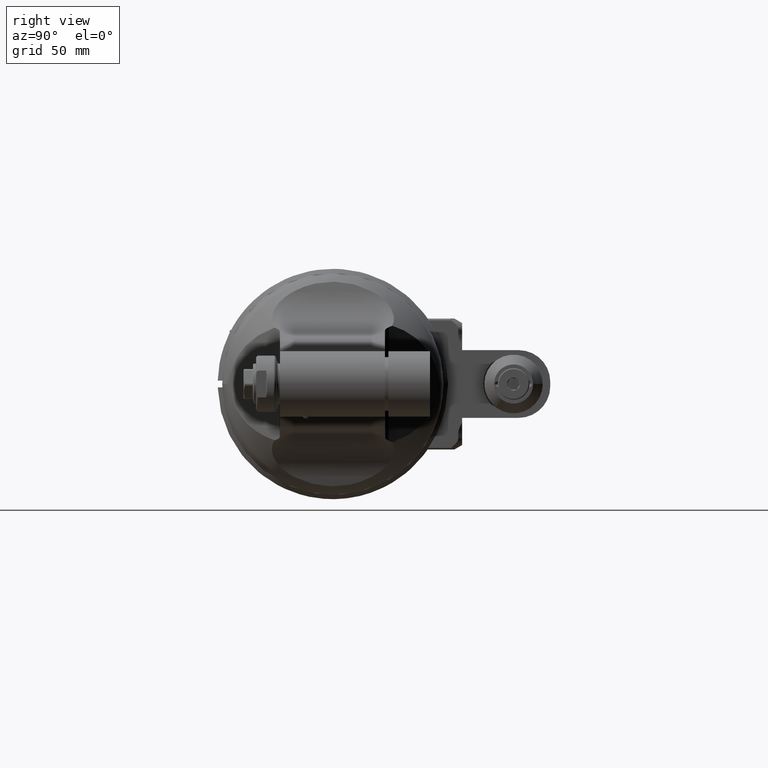
[diagram: clean part render]
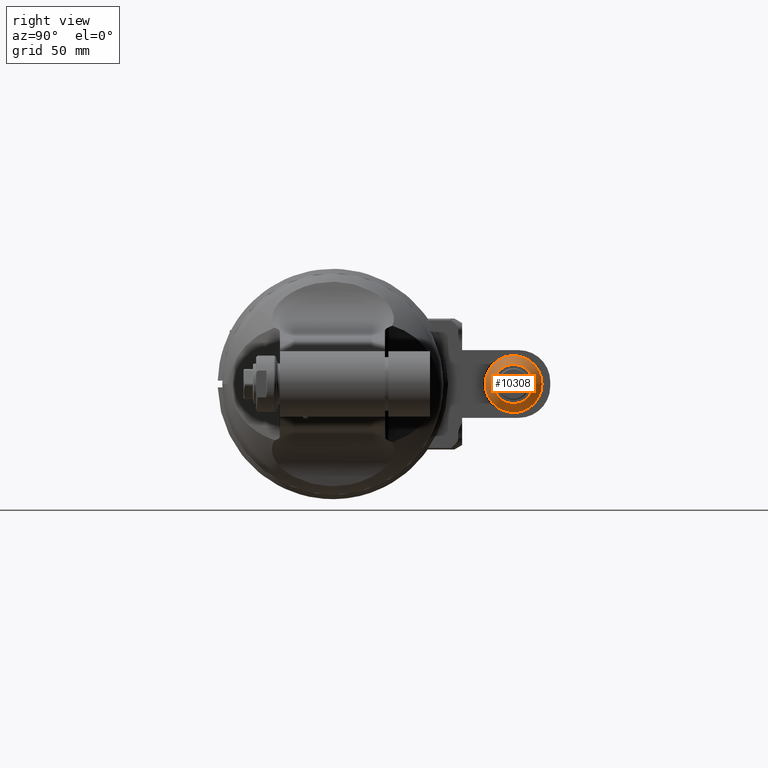
[diagram: same view with one face highlighted and labeled with its STEP entity id]
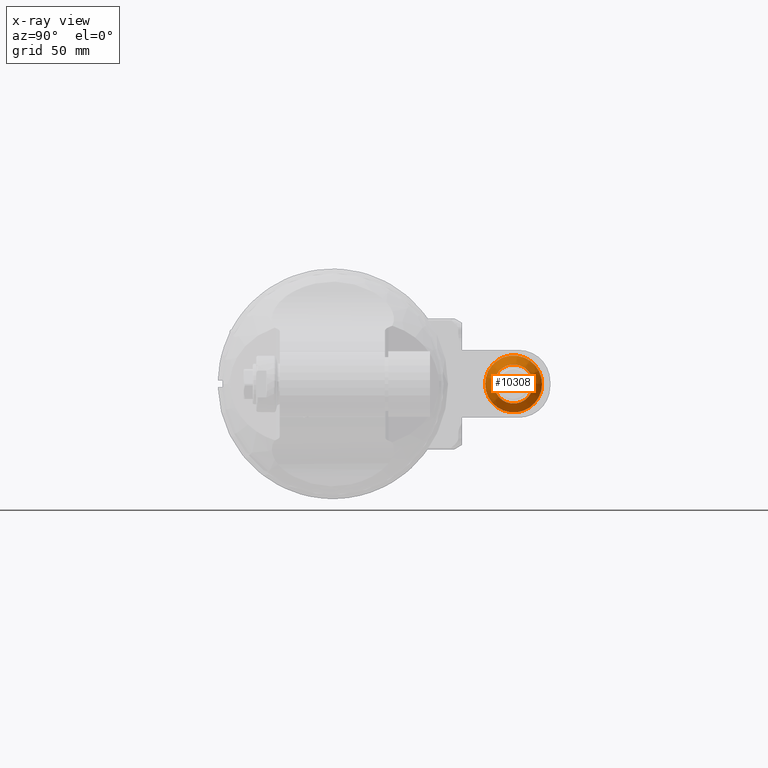
[diagram: x-ray of the same camera — body ghosted, the highlighted face saturated]
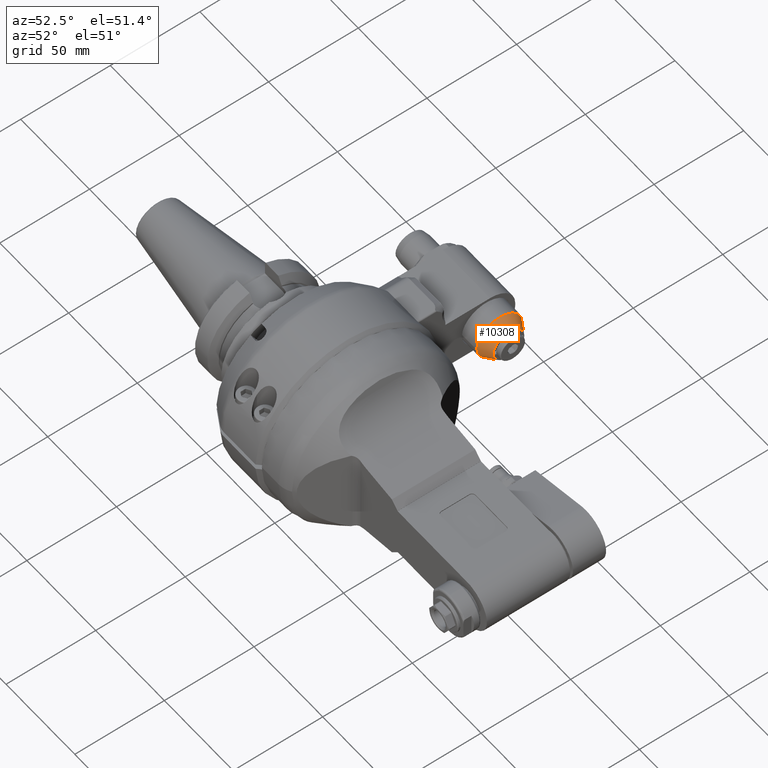
[diagram: same view with one face highlighted and labeled with its STEP entity id]
A machine part, right view. The second image highlights one B-rep face of the part: STEP entity #10308.
The next image is the same camera in x-ray: the body ghosted, the highlighted face saturated — about 0% of this face is hidden behind the body in this view.
A second angle (auxiliary view) of the same face is appended — the face is thin or edge-on in the first view.
In plain terms, the highlighted conical surface has half-angle 30 deg.
Its self-contained STEP definition (entity closure, byte-faithful):
#657=CONICAL_SURFACE('',#11192,10.63397459622,0.523598775598299);
#987=FACE_OUTER_BOUND('',#1579,.T.);
#1579=EDGE_LOOP('',(#8190,#8191,#8192,#8193));
#2135=CIRCLE('',#11191,12.59807621135);
#2136=CIRCLE('',#11193,8.669872981078);
#2822=LINE('',#17355,#3657);
#3657=VECTOR('',#13024,10.63397459622);
#4621=VERTEX_POINT('',#17350);
#4622=VERTEX_POINT('',#17354);
#5953=EDGE_CURVE('',#4621,#4621,#2135,.T.);
#5954=EDGE_CURVE('',#4621,#4622,#2822,.T.);
#5955=EDGE_CURVE('',#4622,#4622,#2136,.T.);
#8190=ORIENTED_EDGE('',*,*,#5953,.F.);
#8191=ORIENTED_EDGE('',*,*,#5954,.T.);
#8192=ORIENTED_EDGE('',*,*,#5955,.F.);
#8193=ORIENTED_EDGE('',*,*,#5954,.F.);
#10308=ADVANCED_FACE('',(#987),#657,.T.);
#11191=AXIS2_PLACEMENT_3D('',#17352,#13020,#13021);
#11192=AXIS2_PLACEMENT_3D('',#17353,#13022,#13023);
#11193=AXIS2_PLACEMENT_3D('',#17356,#13025,#13026);
#13020=DIRECTION('center_axis',(-1.,0.,0.));
#13021=DIRECTION('ref_axis',(0.,1.,0.));
#13022=DIRECTION('center_axis',(-1.,0.,0.));
#13023=DIRECTION('ref_axis',(0.,-1.,0.));
#13024=DIRECTION('',(0.866025403784439,-0.5,6.12323399573676E-17));
#13025=DIRECTION('center_axis',(1.,0.,0.));
#13026=DIRECTION('ref_axis',(0.,-1.,0.));
#17350=CARTESIAN_POINT('',(-7.303847577293,77.59807621135,0.));
#17352=CARTESIAN_POINT('Origin',(-7.303847577293,65.,0.));
#17353=CARTESIAN_POINT('Origin',(-3.901923788647,65.,0.));
#17354=CARTESIAN_POINT('',(-0.5,73.66987298108,0.));
#17355=CARTESIAN_POINT('',(-3.901923788647,75.63397459622,-1.30228629514751E-15));
#17356=CARTESIAN_POINT('Origin',(-0.5,65.,0.));